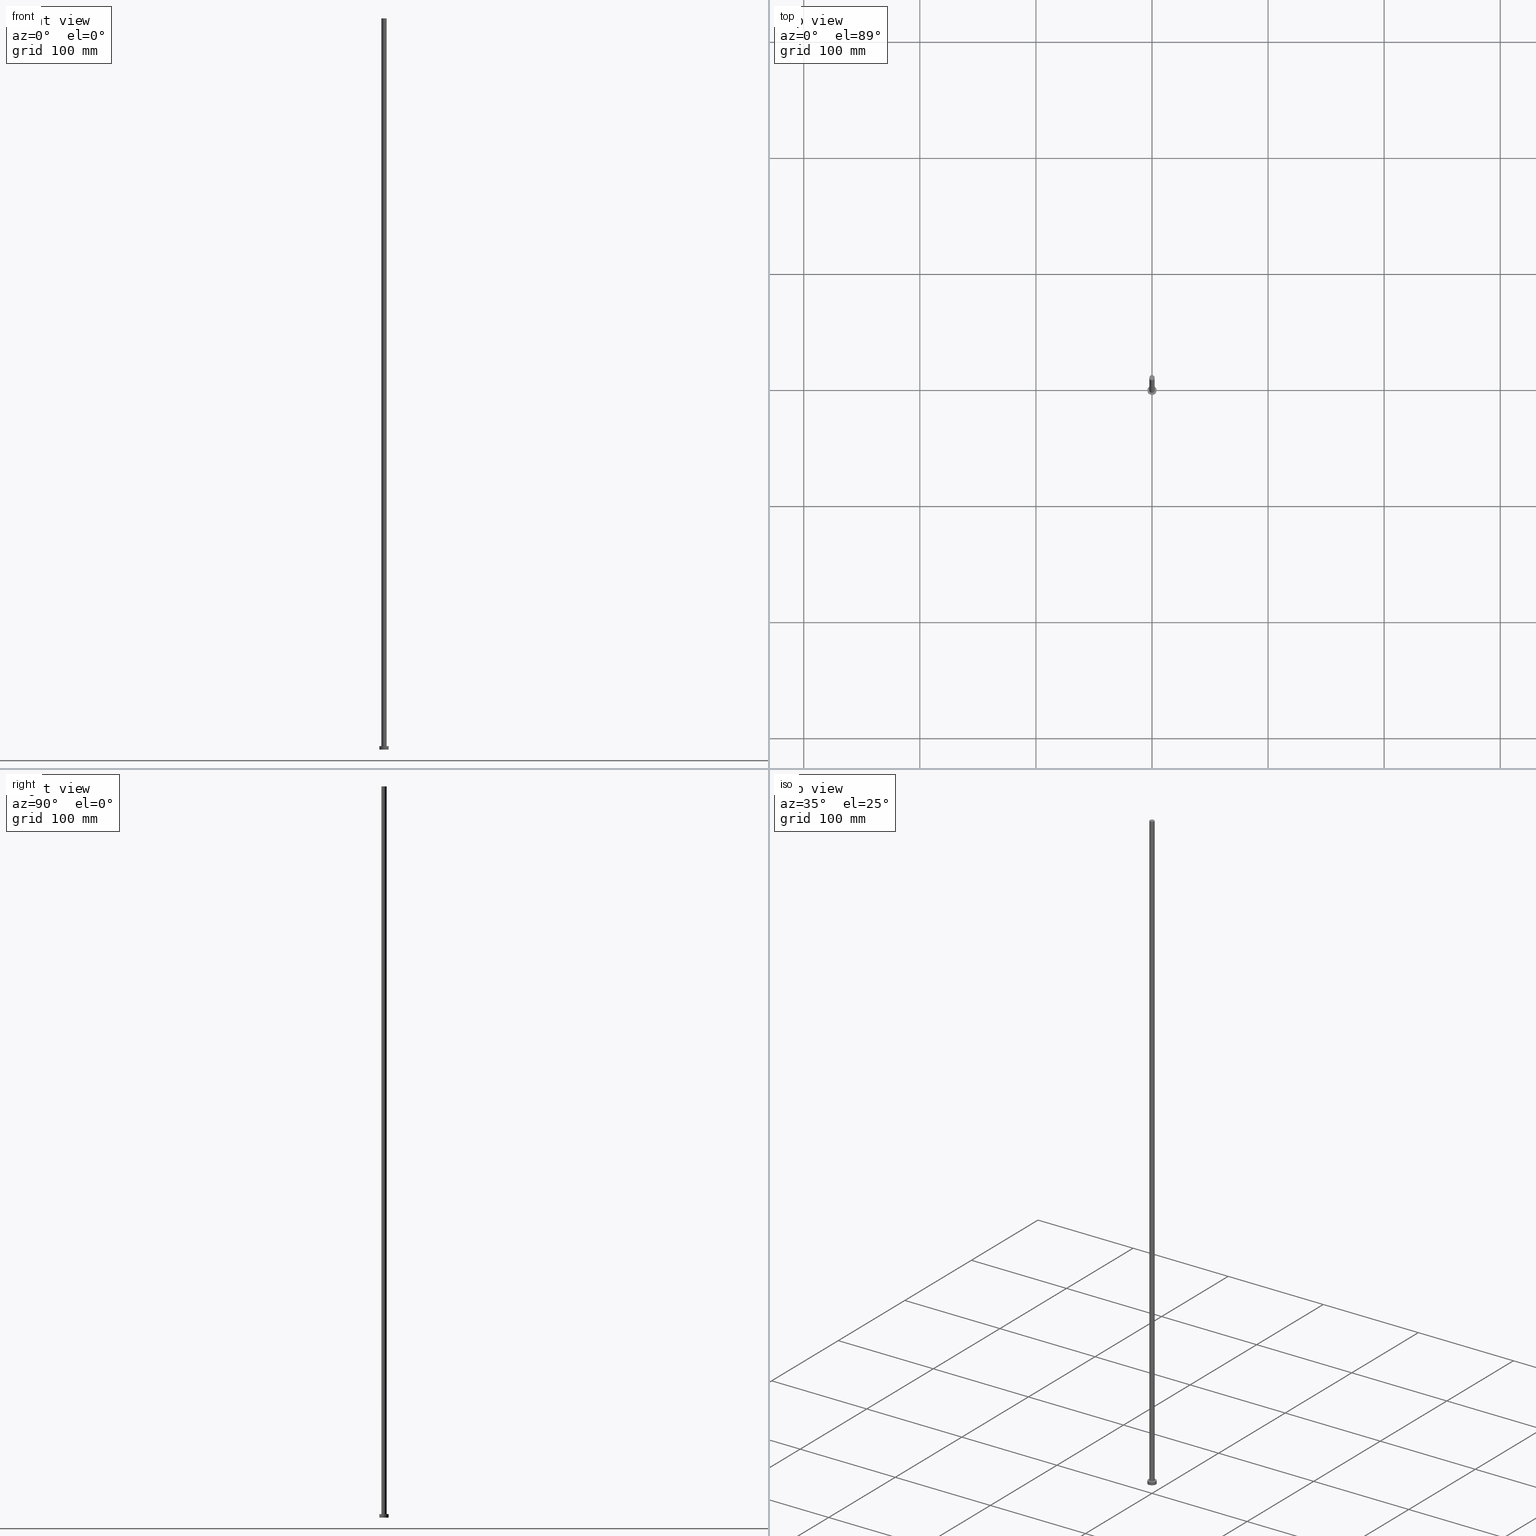
[diagram: canonical four-view strip — front | top / right | iso, engineering-drawing reading convention]
A machine part, canonical four-view strip (front | top / right | iso — engineering-drawing reading convention). The complete STEP part file that produces these views, byte-faithful:
ISO-10303-21;
HEADER;
FILE_DESCRIPTION (( 'STEP AP203' ),
    '1' );
FILE_NAME ('7fba.STEP',
    '2023-02-13T15:03:35',
    ( '' ),
    ( '' ),
    'SwSTEP 2.0',
    'SolidWorks 2019',
    '' );
FILE_SCHEMA (( 'CONFIG_CONTROL_DESIGN' ));
ENDSEC;

DATA;
#1 = PRODUCT_RELATED_PRODUCT_CATEGORY ( 'detail', '', ( #39 ) ) ;
#2 = DIRECTION ( 'NONE',  ( -0.000000000000000000, -0.000000000000000000, -1.000000000000000000 ) ) ;
#3 = PRODUCT_DEFINITION_SHAPE ( 'NONE', 'NONE',  #86 ) ;
#4 = CARTESIAN_POINT ( 'NONE',  ( -2.250000000000000000, 0.000000000000000000, 630.0000000000000000 ) ) ;
#5 = AXIS2_PLACEMENT_3D ( 'NONE', #137, #191, #94 ) ;
#6 = DIRECTION ( 'NONE',  ( -0.000000000000000000, -0.000000000000000000, -1.000000000000000000 ) ) ;
#7 = ADVANCED_FACE ( 'NONE', ( #42 ), #25, .T. ) ;
#8 = LINE ( 'NONE', #126, #225 ) ;
#9 = LINE ( 'NONE', #161, #254 ) ;
#10 = COORDINATED_UNIVERSAL_TIME_OFFSET ( 1, 0, .AHEAD. ) ;
#11 = AXIS2_PLACEMENT_3D ( 'NONE', #230, #232, #236 ) ;
#12 = PERSON_AND_ORGANIZATION ( #199, #245 ) ;
#13 = CALENDAR_DATE ( 2023, 13, 2 ) ;
#14 = VERTEX_POINT ( 'NONE', #50 ) ;
#15 = APPROVAL ( #149, 'NEUR�EN�' ) ;
#16 = COORDINATED_UNIVERSAL_TIME_OFFSET ( 1, 0, .AHEAD. ) ;
#17 = ORIENTED_EDGE ( 'NONE', *, *, #195, .F. ) ;
#18 = CARTESIAN_POINT ( 'NONE',  ( -4.000000000000000000, 0.000000000000000000, 0.000000000000000000 ) ) ;
#19 = ORIENTED_EDGE ( 'NONE', *, *, #78, .F. ) ;
#20 = CIRCLE ( 'NONE', #83, 2.250000000000000000 ) ;
#21 = AXIS2_PLACEMENT_3D ( 'NONE', #82, #123, #160 ) ;
#22 = EDGE_CURVE ( 'NONE', #99, #128, #20, .T. ) ;
#23 = AXIS2_PLACEMENT_3D ( 'NONE', #150, #2, #229 ) ;
#24 = LOCAL_TIME ( 16, 3, 35.00000000000000000, #10 ) ;
#25 = CYLINDRICAL_SURFACE ( 'NONE', #23, 2.250000000000000000 ) ;
#26 = DIRECTION ( 'NONE',  ( 1.000000000000000000, 0.000000000000000000, 0.000000000000000000 ) ) ;
#27 = EDGE_CURVE ( 'NONE', #53, #101, #167, .T. ) ;
#28 = CARTESIAN_POINT ( 'NONE',  ( 2.250000000000000000, 2.755455298081544285E-16, 630.0000000000000000 ) ) ;
#29 = FACE_OUTER_BOUND ( 'NONE', #192, .T. ) ;
#30 = DIRECTION ( 'NONE',  ( -0.000000000000000000, -0.000000000000000000, -1.000000000000000000 ) ) ;
#31 =( NAMED_UNIT ( * ) SI_UNIT ( $, .STERADIAN. ) SOLID_ANGLE_UNIT ( ) );
#32 = CALENDAR_DATE ( 2023, 13, 2 ) ;
#33 = PERSON_AND_ORGANIZATION_ROLE ( 'classification_officer' ) ;
#34 = PERSON_AND_ORGANIZATION_ROLE ( 'design_owner' ) ;
#35 = EDGE_CURVE ( 'NONE', #216, #54, #244, .T. ) ;
#36 = ORIENTED_EDGE ( 'NONE', *, *, #35, .T. ) ;
#37 = DIRECTION ( 'NONE',  ( 0.000000000000000000, 0.000000000000000000, 1.000000000000000000 ) ) ;
#38 = ORIENTED_EDGE ( 'NONE', *, *, #27, .F. ) ;
#39 = PRODUCT ( '7fba', '7fba', '', ( #49 ) ) ;
#40 = PLANE ( 'NONE',  #124 ) ;
#41 = SECURITY_CLASSIFICATION ( '', '', #48 ) ;
#42 = FACE_OUTER_BOUND ( 'NONE', #115, .T. ) ;
#43 = AXIS2_PLACEMENT_3D ( 'NONE', #239, #181, #198 ) ;
#44 = LINE ( 'NONE', #28, #155 ) ;
#45 =( LENGTH_UNIT ( ) NAMED_UNIT ( * ) SI_UNIT ( .MILLI., .METRE. ) );
#46 = FACE_OUTER_BOUND ( 'NONE', #157, .T. ) ;
#47 = ORIENTED_EDGE ( 'NONE', *, *, #22, .F. ) ;
#48 = SECURITY_CLASSIFICATION_LEVEL ( 'unclassified' ) ;
#49 = MECHANICAL_CONTEXT ( 'NONE', #203, 'mechanical' ) ;
#50 = CARTESIAN_POINT ( 'NONE',  ( 2.250000000000000000, 2.755455298081544285E-16, 630.0000000000000000 ) ) ;
#51 = PERSON_AND_ORGANIZATION_ROLE ( 'creator' ) ;
#52 = ORIENTED_EDGE ( 'NONE', *, *, #35, .F. ) ;
#53 = VERTEX_POINT ( 'NONE', #18 ) ;
#54 = VERTEX_POINT ( 'NONE', #98 ) ;
#55 = AXIS2_PLACEMENT_3D ( 'NONE', #211, #156, #109 ) ;
#56 = CIRCLE ( 'NONE', #43, 2.250000000000000000 ) ;
#57 = EDGE_CURVE ( 'NONE', #101, #53, #196, .T. ) ;
#58 = ORIENTED_EDGE ( 'NONE', *, *, #195, .T. ) ;
#59 = DIRECTION ( 'NONE',  ( -0.000000000000000000, -0.000000000000000000, -1.000000000000000000 ) ) ;
#60 = ADVANCED_FACE ( 'NONE', ( #250 ), #40, .T. ) ;
#61 = CARTESIAN_POINT ( 'NONE',  ( 0.000000000000000000, 0.000000000000000000, 3.000000000000000000 ) ) ;
#62 = FACE_OUTER_BOUND ( 'NONE', #175, .T. ) ;
#63 = DESIGN_CONTEXT ( 'detailed design', #165, 'design' ) ;
#64 = LOCAL_TIME ( 16, 3, 35.00000000000000000, #16 ) ;
#65 = DIRECTION ( 'NONE',  ( -1.000000000000000000, 0.000000000000000000, 0.000000000000000000 ) ) ;
#66 = PERSON_AND_ORGANIZATION_ROLE ( 'creator' ) ;
#67 = APPROVAL_STATUS ( 'not_yet_approved' ) ;
#68 = EDGE_CURVE ( 'NONE', #128, #99, #146, .T. ) ;
#69 = DATE_AND_TIME ( #32, #64 ) ;
#70 =( GEOMETRIC_REPRESENTATION_CONTEXT ( 3 ) GLOBAL_UNCERTAINTY_ASSIGNED_CONTEXT ( ( #80 ) ) GLOBAL_UNIT_ASSIGNED_CONTEXT ( ( #45, #200, #31 ) ) REPRESENTATION_CONTEXT ( 'NONE', 'WORKASPACE' ) );
#71 = COORDINATED_UNIVERSAL_TIME_OFFSET ( 1, 0, .AHEAD. ) ;
#72 = CARTESIAN_POINT ( 'NONE',  ( 0.000000000000000000, 0.000000000000000000, 630.0000000000000000 ) ) ;
#73 = PERSON_AND_ORGANIZATION ( #199, #245 ) ;
#74 = ORIENTED_EDGE ( 'NONE', *, *, #193, .T. ) ;
#75 = AXIS2_PLACEMENT_3D ( 'NONE', #158, #6, #204 ) ;
#76 = ORIENTED_EDGE ( 'NONE', *, *, #241, .F. ) ;
#77 = ORIENTED_EDGE ( 'NONE', *, *, #183, .F. ) ;
#78 = EDGE_CURVE ( 'NONE', #14, #128, #44, .T. ) ;
#79 = AXIS2_PLACEMENT_3D ( 'NONE', #153, #132, #95 ) ;
#80 = UNCERTAINTY_MEASURE_WITH_UNIT (LENGTH_MEASURE( 1.000000000000000082E-05 ), #45, 'distance_accuracy_value', 'NONE');
#81 = DIRECTION ( 'NONE',  ( -1.000000000000000000, 0.000000000000000000, 0.000000000000000000 ) ) ;
#82 = CARTESIAN_POINT ( 'NONE',  ( 0.000000000000000000, 0.000000000000000000, 3.000000000000000000 ) ) ;
#83 = AXIS2_PLACEMENT_3D ( 'NONE', #131, #189, #174 ) ;
#84 = FACE_BOUND ( 'NONE', #154, .T. ) ;
#85 = DIRECTION ( 'NONE',  ( -0.000000000000000000, -0.000000000000000000, -1.000000000000000000 ) ) ;
#86 = PRODUCT_DEFINITION ( 'NEZN�M�', '', #235, #63 ) ;
#87 = CARTESIAN_POINT ( 'NONE',  ( 0.000000000000000000, 0.000000000000000000, 3.000000000000000000 ) ) ;
#88 = ADVANCED_BREP_SHAPE_REPRESENTATION ( '7fba', ( #163, #79 ), #70 ) ;
#89 = PERSON_AND_ORGANIZATION_ROLE ( 'design_supplier' ) ;
#90 = CC_DESIGN_PERSON_AND_ORGANIZATION_ASSIGNMENT ( #130, #33, ( #41 ) ) ;
#91 = APPROVAL_DATE_TIME ( #207, #15 ) ;
#92 = APPROVAL_DATE_TIME ( #108, #231 ) ;
#93 = CIRCLE ( 'NONE', #125, 4.000000000000000000 ) ;
#94 = DIRECTION ( 'NONE',  ( 1.000000000000000000, 0.000000000000000000, 0.000000000000000000 ) ) ;
#95 = DIRECTION ( 'NONE',  ( 1.000000000000000000, 0.000000000000000000, 0.000000000000000000 ) ) ;
#96 = ORIENTED_EDGE ( 'NONE', *, *, #241, .T. ) ;
#97 = EDGE_CURVE ( 'NONE', #54, #101, #9, .T. ) ;
#98 = CARTESIAN_POINT ( 'NONE',  ( 4.000000000000000000, 4.898587196589412829E-16, 3.000000000000000000 ) ) ;
#99 = VERTEX_POINT ( 'NONE', #221 ) ;
#100 = AXIS2_PLACEMENT_3D ( 'NONE', #184, #182, #243 ) ;
#101 = VERTEX_POINT ( 'NONE', #127 ) ;
#102 = CARTESIAN_POINT ( 'NONE',  ( 2.250000000000000000, 2.755455298081544285E-16, 3.000000000000000000 ) ) ;
#103 = FACE_OUTER_BOUND ( 'NONE', #252, .T. ) ;
#104 = DIRECTION ( 'NONE',  ( -0.000000000000000000, -0.000000000000000000, -1.000000000000000000 ) ) ;
#105 = DIRECTION ( 'NONE',  ( 1.000000000000000000, 0.000000000000000000, 0.000000000000000000 ) ) ;
#106 = CALENDAR_DATE ( 2023, 13, 2 ) ;
#107 = APPLICATION_PROTOCOL_DEFINITION ( 'international standard', 'config_control_design', 1994, #165 ) ;
#108 = DATE_AND_TIME ( #13, #255 ) ;
#109 = DIRECTION ( 'NONE',  ( 1.000000000000000000, 0.000000000000000000, 0.000000000000000000 ) ) ;
#110 = CALENDAR_DATE ( 2023, 13, 2 ) ;
#111 = APPROVAL_PERSON_ORGANIZATION ( #171, #231, #209 ) ;
#112 = CARTESIAN_POINT ( 'NONE',  ( 0.000000000000000000, 0.000000000000000000, 3.000000000000000000 ) ) ;
#113 = ADVANCED_FACE ( 'NONE', ( #103 ), #121, .T. ) ;
#114 = PERSON_AND_ORGANIZATION ( #199, #245 ) ;
#115 = EDGE_LOOP ( 'NONE', ( #19, #77, #96, #152 ) ) ;
#116 = ORIENTED_EDGE ( 'NONE', *, *, #57, .T. ) ;
#117 = ADVANCED_FACE ( 'NONE', ( #46 ), #180, .F. ) ;
#118 = ORIENTED_EDGE ( 'NONE', *, *, #219, .T. ) ;
#119 = APPROVAL_PERSON_ORGANIZATION ( #73, #15, #148 ) ;
#120 = CARTESIAN_POINT ( 'NONE',  ( -2.250000000000000000, 0.000000000000000000, 630.0000000000000000 ) ) ;
#121 = CYLINDRICAL_SURFACE ( 'NONE', #213, 4.000000000000000000 ) ;
#122 = CC_DESIGN_DATE_AND_TIME_ASSIGNMENT ( #69, #151, ( #41 ) ) ;
#123 = DIRECTION ( 'NONE',  ( 0.000000000000000000, 0.000000000000000000, 1.000000000000000000 ) ) ;
#124 = AXIS2_PLACEMENT_3D ( 'NONE', #72, #134, #194 ) ;
#125 = AXIS2_PLACEMENT_3D ( 'NONE', #61, #226, #179 ) ;
#126 = CARTESIAN_POINT ( 'NONE',  ( -4.000000000000000000, 0.000000000000000000, 3.000000000000000000 ) ) ;
#127 = CARTESIAN_POINT ( 'NONE',  ( 4.000000000000000000, 4.898587196589412829E-16, 0.000000000000000000 ) ) ;
#128 = VERTEX_POINT ( 'NONE', #102 ) ;
#129 = CALENDAR_DATE ( 2023, 13, 2 ) ;
#130 = PERSON_AND_ORGANIZATION ( #199, #245 ) ;
#131 = CARTESIAN_POINT ( 'NONE',  ( 0.000000000000000000, 0.000000000000000000, 3.000000000000000000 ) ) ;
#132 = DIRECTION ( 'NONE',  ( 0.000000000000000000, 0.000000000000000000, 1.000000000000000000 ) ) ;
#133 = ADVANCED_FACE ( 'NONE', ( #62 ), #142, .T. ) ;
#134 = DIRECTION ( 'NONE',  ( 0.000000000000000000, 0.000000000000000000, 1.000000000000000000 ) ) ;
#135 = APPROVAL_STATUS ( 'not_yet_approved' ) ;
#136 = ORIENTED_EDGE ( 'NONE', *, *, #97, .T. ) ;
#137 = CARTESIAN_POINT ( 'NONE',  ( 0.000000000000000000, 0.000000000000000000, 0.000000000000000000 ) ) ;
#138 = CC_DESIGN_PERSON_AND_ORGANIZATION_ASSIGNMENT ( #164, #89, ( #235 ) ) ;
#139 = ORIENTED_EDGE ( 'NONE', *, *, #183, .T. ) ;
#140 = CYLINDRICAL_SURFACE ( 'NONE', #75, 2.250000000000000000 ) ;
#141 = CC_DESIGN_APPROVAL ( #231, ( #86 ) ) ;
#142 = CYLINDRICAL_SURFACE ( 'NONE', #248, 4.000000000000000000 ) ;
#143 = CC_DESIGN_PERSON_AND_ORGANIZATION_ASSIGNMENT ( #114, #34, ( #39 ) ) ;
#144 = DIRECTION ( 'NONE',  ( -0.000000000000000000, -0.000000000000000000, -1.000000000000000000 ) ) ;
#145 = DIRECTION ( 'NONE',  ( 0.000000000000000000, 0.000000000000000000, 1.000000000000000000 ) ) ;
#146 = CIRCLE ( 'NONE', #234, 2.250000000000000000 ) ;
#147 = LOCAL_TIME ( 16, 3, 35.00000000000000000, #169 ) ;
#148 = APPROVAL_ROLE ( '' ) ;
#149 = APPROVAL_STATUS ( 'not_yet_approved' ) ;
#150 = CARTESIAN_POINT ( 'NONE',  ( 0.000000000000000000, 0.000000000000000000, 630.0000000000000000 ) ) ;
#151 = DATE_TIME_ROLE ( 'classification_date' ) ;
#152 = ORIENTED_EDGE ( 'NONE', *, *, #22, .T. ) ;
#153 = CARTESIAN_POINT ( 'NONE',  ( 0.000000000000000000, 0.000000000000000000, 0.000000000000000000 ) ) ;
#154 = EDGE_LOOP ( 'NONE', ( #47, #238 ) ) ;
#155 = VECTOR ( 'NONE', #144, 1000.000000000000000 ) ;
#156 = DIRECTION ( 'NONE',  ( 0.000000000000000000, 0.000000000000000000, 1.000000000000000000 ) ) ;
#157 = EDGE_LOOP ( 'NONE', ( #38, #197 ) ) ;
#158 = CARTESIAN_POINT ( 'NONE',  ( 0.000000000000000000, 0.000000000000000000, 630.0000000000000000 ) ) ;
#159 = DIRECTION ( 'NONE',  ( -0.000000000000000000, -0.000000000000000000, -1.000000000000000000 ) ) ;
#160 = DIRECTION ( 'NONE',  ( 1.000000000000000000, 0.000000000000000000, -0.000000000000000000 ) ) ;
#161 = CARTESIAN_POINT ( 'NONE',  ( 4.000000000000000000, 4.898587196589412829E-16, 3.000000000000000000 ) ) ;
#162 = ADVANCED_FACE ( 'NONE', ( #29 ), #140, .T. ) ;
#163 = MANIFOLD_SOLID_BREP ( 'P�idat vysunut�m3', #176 ) ;
#164 = PERSON_AND_ORGANIZATION ( #199, #245 ) ;
#165 = APPLICATION_CONTEXT ( 'configuration controlled 3d designs of mechanical parts and assemblies' ) ;
#166 = CC_DESIGN_DATE_AND_TIME_ASSIGNMENT ( #212, #249, ( #86 ) ) ;
#167 = CIRCLE ( 'NONE', #55, 4.000000000000000000 ) ;
#168 = LOCAL_TIME ( 16, 3, 35.00000000000000000, #71 ) ;
#169 = COORDINATED_UNIVERSAL_TIME_OFFSET ( 1, 0, .AHEAD. ) ;
#170 = VERTEX_POINT ( 'NONE', #4 ) ;
#171 = PERSON_AND_ORGANIZATION ( #199, #245 ) ;
#172 = ORIENTED_EDGE ( 'NONE', *, *, #193, .F. ) ;
#173 = CC_DESIGN_PERSON_AND_ORGANIZATION_ASSIGNMENT ( #228, #51, ( #235 ) ) ;
#174 = DIRECTION ( 'NONE',  ( 1.000000000000000000, 0.000000000000000000, 0.000000000000000000 ) ) ;
#175 = EDGE_LOOP ( 'NONE', ( #17, #136, #116, #251 ) ) ;
#176 = CLOSED_SHELL ( 'NONE', ( #162, #133, #113, #205, #117, #7, #60 ) ) ;
#177 = CC_DESIGN_APPROVAL ( #15, ( #235 ) ) ;
#178 = EDGE_LOOP ( 'NONE', ( #139, #74 ) ) ;
#179 = DIRECTION ( 'NONE',  ( 1.000000000000000000, 0.000000000000000000, 0.000000000000000000 ) ) ;
#180 = PLANE ( 'NONE',  #100 ) ;
#181 = DIRECTION ( 'NONE',  ( 0.000000000000000000, 0.000000000000000000, 1.000000000000000000 ) ) ;
#182 = DIRECTION ( 'NONE',  ( 0.000000000000000000, 0.000000000000000000, 1.000000000000000000 ) ) ;
#183 = EDGE_CURVE ( 'NONE', #170, #14, #56, .T. ) ;
#184 = CARTESIAN_POINT ( 'NONE',  ( 0.000000000000000000, 0.000000000000000000, 0.000000000000000000 ) ) ;
#185 = DATE_AND_TIME ( #106, #24 ) ;
#186 = SHAPE_DEFINITION_REPRESENTATION ( #3, #88 ) ;
#187 = APPROVAL ( #67, 'NEUR�EN�' ) ;
#188 = COORDINATED_UNIVERSAL_TIME_OFFSET ( 1, 0, .AHEAD. ) ;
#189 = DIRECTION ( 'NONE',  ( 0.000000000000000000, 0.000000000000000000, 1.000000000000000000 ) ) ;
#190 = AXIS2_PLACEMENT_3D ( 'NONE', #242, #145, #26 ) ;
#191 = DIRECTION ( 'NONE',  ( 0.000000000000000000, 0.000000000000000000, 1.000000000000000000 ) ) ;
#192 = EDGE_LOOP ( 'NONE', ( #172, #218, #206, #76 ) ) ;
#193 = EDGE_CURVE ( 'NONE', #14, #170, #202, .T. ) ;
#194 = DIRECTION ( 'NONE',  ( 1.000000000000000000, 0.000000000000000000, -0.000000000000000000 ) ) ;
#195 = EDGE_CURVE ( 'NONE', #54, #216, #93, .T. ) ;
#196 = CIRCLE ( 'NONE', #5, 4.000000000000000000 ) ;
#197 = ORIENTED_EDGE ( 'NONE', *, *, #57, .F. ) ;
#198 = DIRECTION ( 'NONE',  ( 1.000000000000000000, 0.000000000000000000, 0.000000000000000000 ) ) ;
#199 = PERSON ( 'NEUR�EN�', 'NEUR�EN�', 'NEUR�EN�', ('NEUR�EN�'), ('NEUR�EN�'), ('NEUR�EN�') ) ;
#200 =( NAMED_UNIT ( * ) PLANE_ANGLE_UNIT ( ) SI_UNIT ( $, .RADIAN. ) );
#201 = LINE ( 'NONE', #120, #220 ) ;
#202 = CIRCLE ( 'NONE', #190, 2.250000000000000000 ) ;
#203 = APPLICATION_CONTEXT ( 'configuration controlled 3d designs of mechanical parts and assemblies' ) ;
#204 = DIRECTION ( 'NONE',  ( -1.000000000000000000, 0.000000000000000000, 0.000000000000000000 ) ) ;
#205 = ADVANCED_FACE ( 'NONE', ( #84, #222 ), #224, .T. ) ;
#206 = ORIENTED_EDGE ( 'NONE', *, *, #68, .T. ) ;
#207 = DATE_AND_TIME ( #110, #168 ) ;
#208 = CC_DESIGN_SECURITY_CLASSIFICATION ( #41, ( #235 ) ) ;
#209 = APPROVAL_ROLE ( '' ) ;
#210 = APPROVAL_ROLE ( '' ) ;
#211 = CARTESIAN_POINT ( 'NONE',  ( 0.000000000000000000, 0.000000000000000000, 0.000000000000000000 ) ) ;
#212 = DATE_AND_TIME ( #129, #147 ) ;
#213 = AXIS2_PLACEMENT_3D ( 'NONE', #87, #104, #65 ) ;
#214 = ORIENTED_EDGE ( 'NONE', *, *, #97, .F. ) ;
#215 = CC_DESIGN_APPROVAL ( #187, ( #41 ) ) ;
#216 = VERTEX_POINT ( 'NONE', #240 ) ;
#217 = ORIENTED_EDGE ( 'NONE', *, *, #27, .T. ) ;
#218 = ORIENTED_EDGE ( 'NONE', *, *, #78, .T. ) ;
#219 = EDGE_CURVE ( 'NONE', #216, #53, #8, .T. ) ;
#220 = VECTOR ( 'NONE', #159, 1000.000000000000000 ) ;
#221 = CARTESIAN_POINT ( 'NONE',  ( -2.250000000000000000, 0.000000000000000000, 3.000000000000000000 ) ) ;
#222 = FACE_OUTER_BOUND ( 'NONE', #253, .T. ) ;
#223 = CARTESIAN_POINT ( 'NONE',  ( 0.000000000000000000, 0.000000000000000000, 3.000000000000000000 ) ) ;
#224 = PLANE ( 'NONE',  #21 ) ;
#225 = VECTOR ( 'NONE', #85, 1000.000000000000000 ) ;
#226 = DIRECTION ( 'NONE',  ( 0.000000000000000000, 0.000000000000000000, 1.000000000000000000 ) ) ;
#227 = APPLICATION_PROTOCOL_DEFINITION ( 'international standard', 'config_control_design', 1994, #203 ) ;
#228 = PERSON_AND_ORGANIZATION ( #199, #245 ) ;
#229 = DIRECTION ( 'NONE',  ( -1.000000000000000000, 0.000000000000000000, 0.000000000000000000 ) ) ;
#230 = CARTESIAN_POINT ( 'NONE',  ( 0.000000000000000000, 0.000000000000000000, 3.000000000000000000 ) ) ;
#231 = APPROVAL ( #135, 'NEUR�EN�' ) ;
#232 = DIRECTION ( 'NONE',  ( 0.000000000000000000, 0.000000000000000000, 1.000000000000000000 ) ) ;
#233 = APPROVAL_PERSON_ORGANIZATION ( #247, #187, #210 ) ;
#234 = AXIS2_PLACEMENT_3D ( 'NONE', #112, #37, #105 ) ;
#235 = PRODUCT_DEFINITION_FORMATION_WITH_SPECIFIED_SOURCE ( 'LIBOVOLN�', '', #39, .NOT_KNOWN. ) ;
#236 = DIRECTION ( 'NONE',  ( 1.000000000000000000, 0.000000000000000000, 0.000000000000000000 ) ) ;
#237 = CC_DESIGN_PERSON_AND_ORGANIZATION_ASSIGNMENT ( #12, #66, ( #86 ) ) ;
#238 = ORIENTED_EDGE ( 'NONE', *, *, #68, .F. ) ;
#239 = CARTESIAN_POINT ( 'NONE',  ( 0.000000000000000000, 0.000000000000000000, 630.0000000000000000 ) ) ;
#240 = CARTESIAN_POINT ( 'NONE',  ( -4.000000000000000000, 0.000000000000000000, 3.000000000000000000 ) ) ;
#241 = EDGE_CURVE ( 'NONE', #170, #99, #201, .T. ) ;
#242 = CARTESIAN_POINT ( 'NONE',  ( 0.000000000000000000, 0.000000000000000000, 630.0000000000000000 ) ) ;
#243 = DIRECTION ( 'NONE',  ( 1.000000000000000000, 0.000000000000000000, -0.000000000000000000 ) ) ;
#244 = CIRCLE ( 'NONE', #11, 4.000000000000000000 ) ;
#245 = ORGANIZATION ( 'NEUR�EN�', 'NEUR�EN�', '' ) ;
#246 = APPROVAL_DATE_TIME ( #185, #187 ) ;
#247 = PERSON_AND_ORGANIZATION ( #199, #245 ) ;
#248 = AXIS2_PLACEMENT_3D ( 'NONE', #223, #30, #81 ) ;
#249 = DATE_TIME_ROLE ( 'creation_date' ) ;
#250 = FACE_OUTER_BOUND ( 'NONE', #178, .T. ) ;
#251 = ORIENTED_EDGE ( 'NONE', *, *, #219, .F. ) ;
#252 = EDGE_LOOP ( 'NONE', ( #214, #52, #118, #217 ) ) ;
#253 = EDGE_LOOP ( 'NONE', ( #36, #58 ) ) ;
#254 = VECTOR ( 'NONE', #59, 1000.000000000000000 ) ;
#255 = LOCAL_TIME ( 16, 3, 35.00000000000000000, #188 ) ;
ENDSEC;
END-ISO-10303-21;
